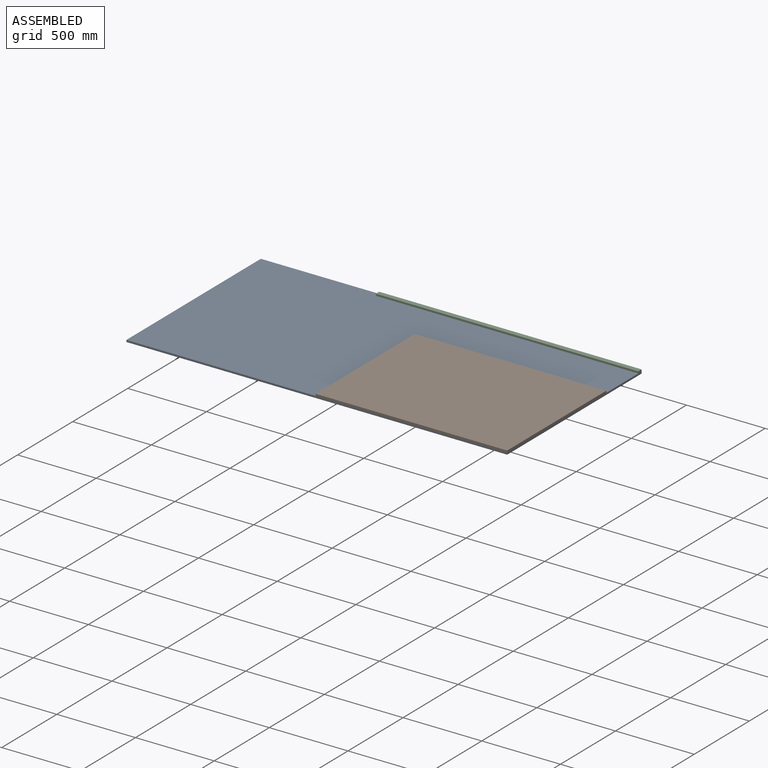
[diagram: assembled view]
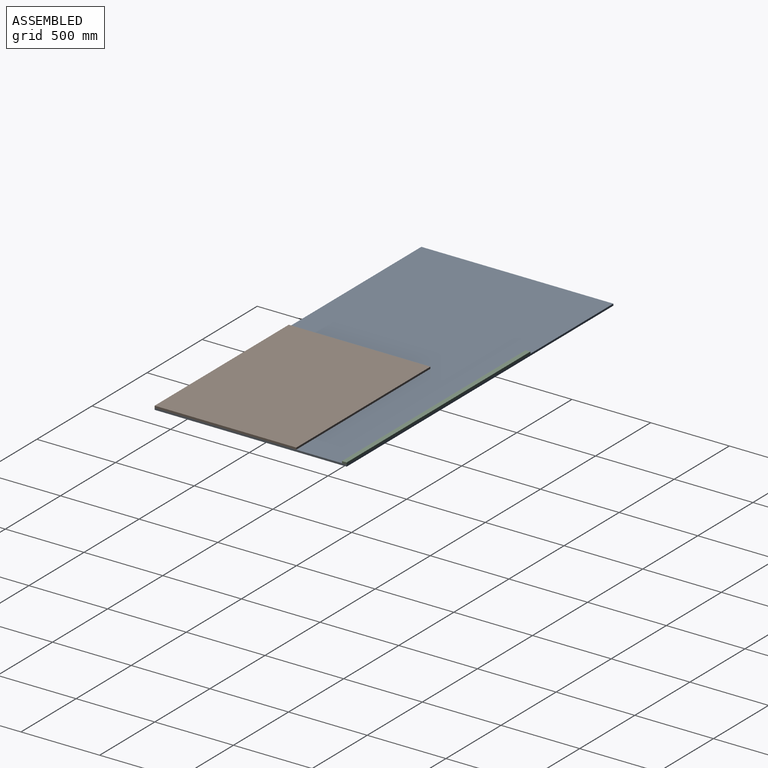
[diagram: assembled view, second angle]
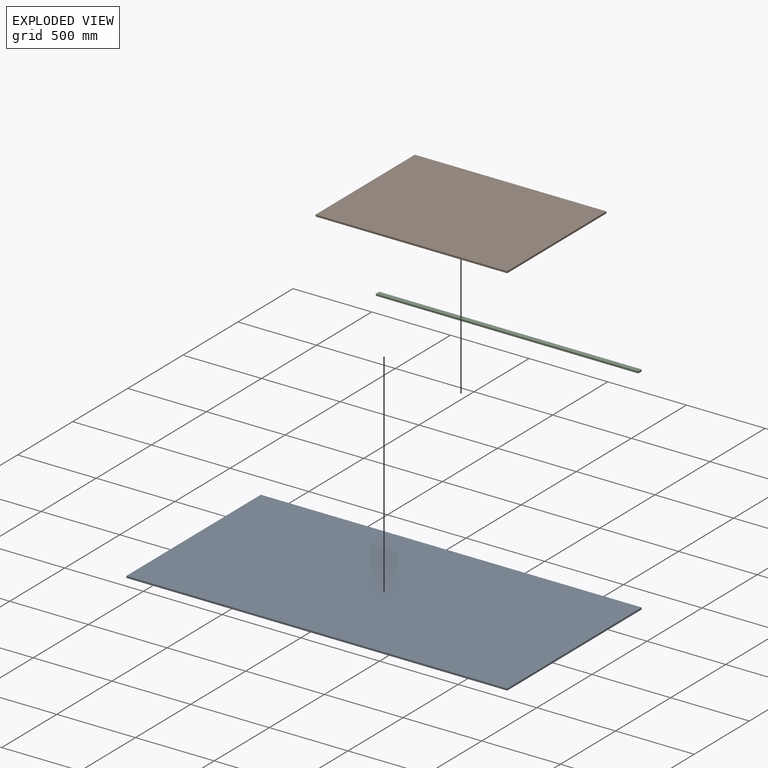
[diagram: exploded view]
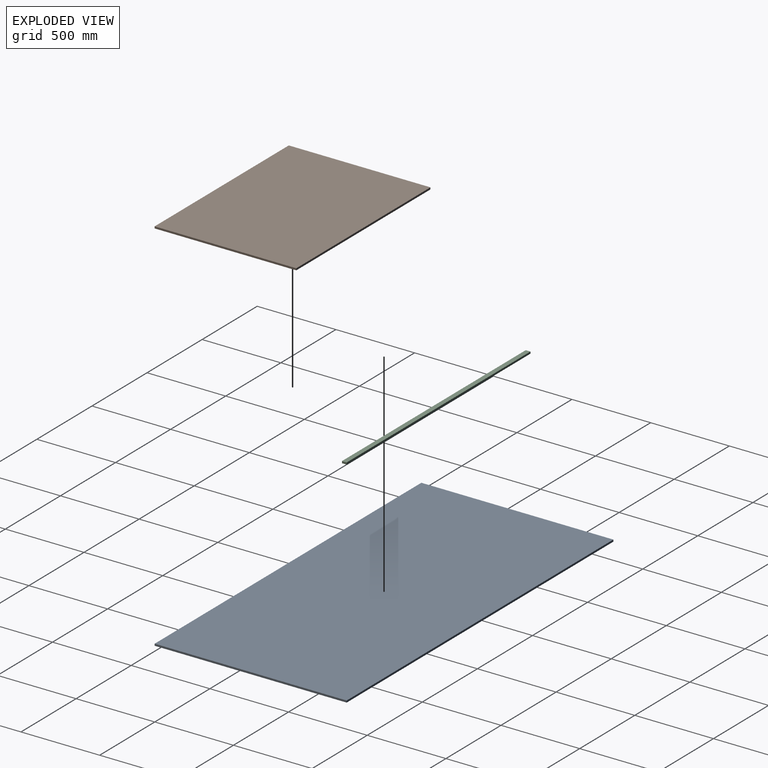
[diagram: exploded view, second angle]
ASSEMBLY  parts=3 mates=2
PART A: 6 faces, bbox 2420x1220x12 mm
  f0: plane 2420x12mm, normal (0,1,0), area 29040mm2, adj f1,f3,f4,f5
  f1: plane 1220x12mm, normal (-1,0,0), area 14640mm2, adj f0,f2,f4,f5
  f2: plane 2420x12mm, normal (0,-1,0), area 29040mm2, adj f1,f3,f4,f5
  f3: plane 1220x12mm, normal (1,0,0), area 14640mm2, adj f0,f2,f4,f5
  f4: plane 2420x1220mm, normal (0,0,1), area 2952400mm2, adj f0,f1,f2,f3
  f5: plane 2420x1220mm, normal (0,0,-1), area 2952400mm2, adj f0,f1,f2,f3
PART B: 6 faces, bbox 1217x900x12 mm
  f0: plane 900x12mm, normal (-1,0,0), area 10800mm2, adj f1,f3,f4,f5
  f1: plane 1217x12mm, normal (0,-1,0), area 14604mm2, adj f0,f2,f4,f5
  f2: plane 900x12mm, normal (1,0,0), area 10800mm2, adj f1,f3,f4,f5
  f3: plane 1217x12mm, normal (0,1,0), area 14604mm2, adj f0,f2,f4,f5
  f4: plane 1217x900mm, normal (0,0,1), area 1095300mm2, adj f0,f1,f2,f3
  f5: plane 1217x900mm, normal (0,0,-1), area 1095300mm2, adj f0,f1,f2,f3
PART C: 6 faces, bbox 1668x12x30 mm
  f0: plane 30x12mm, normal (-1,0,0), area 360mm2, adj f1,f3,f4,f5
  f1: plane 1668x30mm, normal (0,-1,0), area 50040mm2, adj f0,f2,f4,f5
  f2: plane 30x12mm, normal (1,0,0), area 360mm2, adj f1,f3,f4,f5
  f3: plane 1668x30mm, normal (0,1,0), area 50040mm2, adj f0,f2,f4,f5
  f4: plane 1668x12mm, normal (0,0,1), area 20016mm2, adj f0,f1,f2,f3
  f5: plane 1668x12mm, normal (0,0,-1), area 20016mm2, adj f0,f1,f2,f3
PLACE A t=(-408.43,-254.87,-221.02)mm fixed
PLACE B t=(228.22,-544.32,-209.02)mm
PLACE C rot(axis=(1,0,0),90deg) t=(-813.7,231.94,-182.14)mm
MATE planar A.f4 <-> C.f1  axis (0,0,1) through (803.46,231.94,-209.02)mm
MATE planar A.f4 <-> B.f5  axis (0,0,1) through (803.46,-988.06,-209.02)mm
